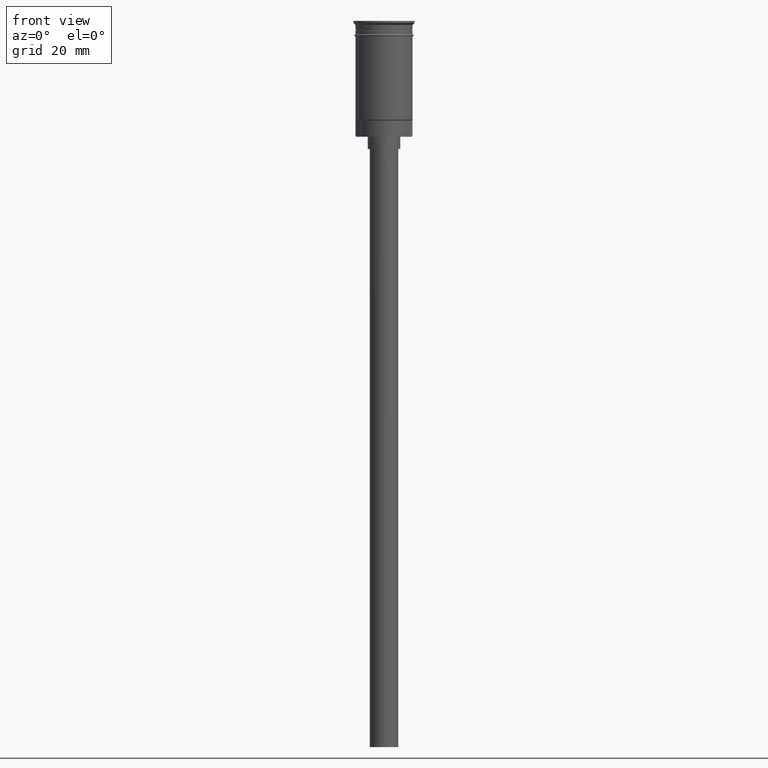
[diagram: clean part render]
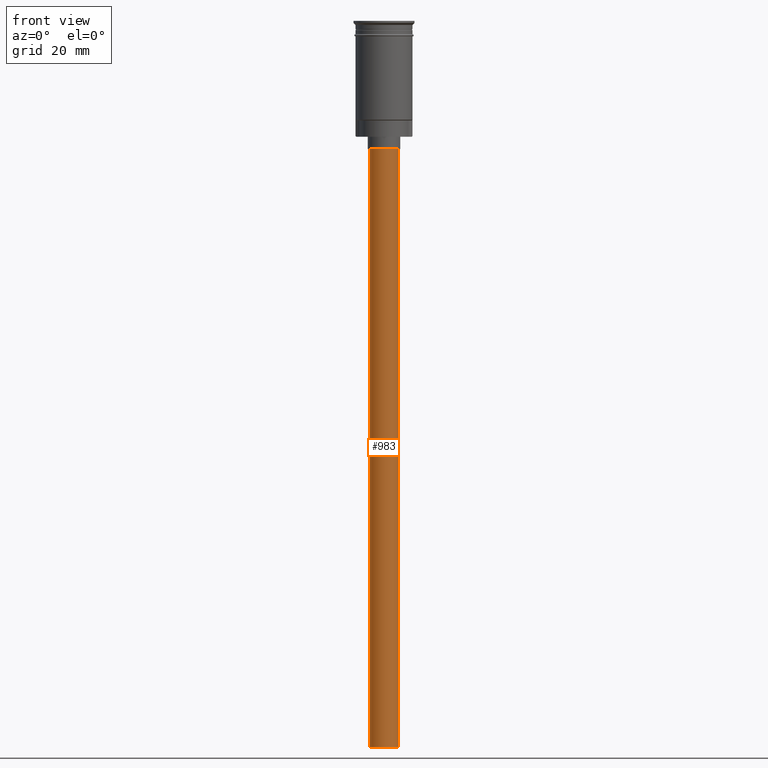
[diagram: same view with one face highlighted and labeled with its STEP entity id]
A machine part, front view. The second image highlights one B-rep face of the part: STEP entity #983.
In plain terms, the highlighted cylindrical surface (edge-blend (fillet) strip) has radius 3.5 mm, axis along (-0, -0, 1).
Its self-contained STEP definition (entity closure, byte-faithful):
#12 = VERTEX_POINT ( 'NONE', #1347 ) ;
#115 = DIRECTION ( 'NONE',  ( -1.000000000000000000, 0.000000000000000000, 0.000000000000000000 ) ) ;
#127 = DIRECTION ( 'NONE',  ( -1.000000000000000000, 0.000000000000000000, 0.000000000000000000 ) ) ;
#219 = CARTESIAN_POINT ( 'NONE',  ( 0.000000000000000000, 0.000000000000000000, -31.50000000000000000 ) ) ;
#239 = DIRECTION ( 'NONE',  ( -0.000000000000000000, -0.000000000000000000, 1.000000000000000000 ) ) ;
#348 = VECTOR ( 'NONE', #790, 1000.000000000000000 ) ;
#364 = EDGE_CURVE ( 'NONE', #1363, #620, #371, .T. ) ;
#371 = CIRCLE ( 'NONE', #1500, 3.500000000000000444 ) ;
#387 = VECTOR ( 'NONE', #890, 1000.000000000000000 ) ;
#463 = CARTESIAN_POINT ( 'NONE',  ( 3.500000000000000444, 0.000000000000000000, -31.50000000000000000 ) ) ;
#507 = CARTESIAN_POINT ( 'NONE',  ( 3.500000000000000444, 0.000000000000000000, -178.5000000000000000 ) ) ;
#573 = ORIENTED_EDGE ( 'NONE', *, *, #599, .T. ) ;
#599 = EDGE_CURVE ( 'NONE', #1363, #1529, #1029, .T. ) ;
#617 = EDGE_CURVE ( 'NONE', #620, #12, #1036, .T. ) ;
#620 = VERTEX_POINT ( 'NONE', #1512 ) ;
#636 = ORIENTED_EDGE ( 'NONE', *, *, #915, .T. ) ;
#648 = AXIS2_PLACEMENT_3D ( 'NONE', #219, #976, #127 ) ;
#723 = DIRECTION ( 'NONE',  ( 1.000000000000000000, 0.000000000000000000, 0.000000000000000000 ) ) ;
#790 = DIRECTION ( 'NONE',  ( -0.000000000000000000, -0.000000000000000000, 1.000000000000000000 ) ) ;
#849 = CARTESIAN_POINT ( 'NONE',  ( 0.000000000000000000, 0.000000000000000000, -178.5000000000000000 ) ) ;
#886 = EDGE_LOOP ( 'NONE', ( #1298, #1309, #573, #636 ) ) ;
#890 = DIRECTION ( 'NONE',  ( -0.000000000000000000, -0.000000000000000000, 1.000000000000000000 ) ) ;
#915 = EDGE_CURVE ( 'NONE', #1529, #12, #1152, .T. ) ;
#953 = DIRECTION ( 'NONE',  ( 0.000000000000000000, 0.000000000000000000, -1.000000000000000000 ) ) ;
#959 = FACE_OUTER_BOUND ( 'NONE', #886, .T. ) ;
#976 = DIRECTION ( 'NONE',  ( 0.000000000000000000, 0.000000000000000000, -1.000000000000000000 ) ) ;
#983 = ADVANCED_FACE ( 'NONE', ( #959 ), #1451, .T. ) ;
#1029 = LINE ( 'NONE', #1392, #348 ) ;
#1036 = LINE ( 'NONE', #1521, #387 ) ;
#1070 = CARTESIAN_POINT ( 'NONE',  ( 0.000000000000000000, 0.000000000000000000, -178.5000000000000000 ) ) ;
#1082 = AXIS2_PLACEMENT_3D ( 'NONE', #849, #239, #723 ) ;
#1152 = CIRCLE ( 'NONE', #648, 3.500000000000000444 ) ;
#1298 = ORIENTED_EDGE ( 'NONE', *, *, #617, .F. ) ;
#1309 = ORIENTED_EDGE ( 'NONE', *, *, #364, .F. ) ;
#1347 = CARTESIAN_POINT ( 'NONE',  ( -3.500000000000000444, 4.286263797015737088E-16, -31.50000000000000000 ) ) ;
#1363 = VERTEX_POINT ( 'NONE', #507 ) ;
#1392 = CARTESIAN_POINT ( 'NONE',  ( 3.500000000000000444, 0.000000000000000000, -178.5000000000000000 ) ) ;
#1451 = CYLINDRICAL_SURFACE ( 'NONE', #1082, 3.500000000000000444 ) ;
#1500 = AXIS2_PLACEMENT_3D ( 'NONE', #1070, #953, #115 ) ;
#1512 = CARTESIAN_POINT ( 'NONE',  ( -3.500000000000000444, 4.286263797015737088E-16, -178.5000000000000000 ) ) ;
#1521 = CARTESIAN_POINT ( 'NONE',  ( -3.500000000000000444, 4.286263797015737088E-16, -178.5000000000000000 ) ) ;
#1529 = VERTEX_POINT ( 'NONE', #463 ) ;